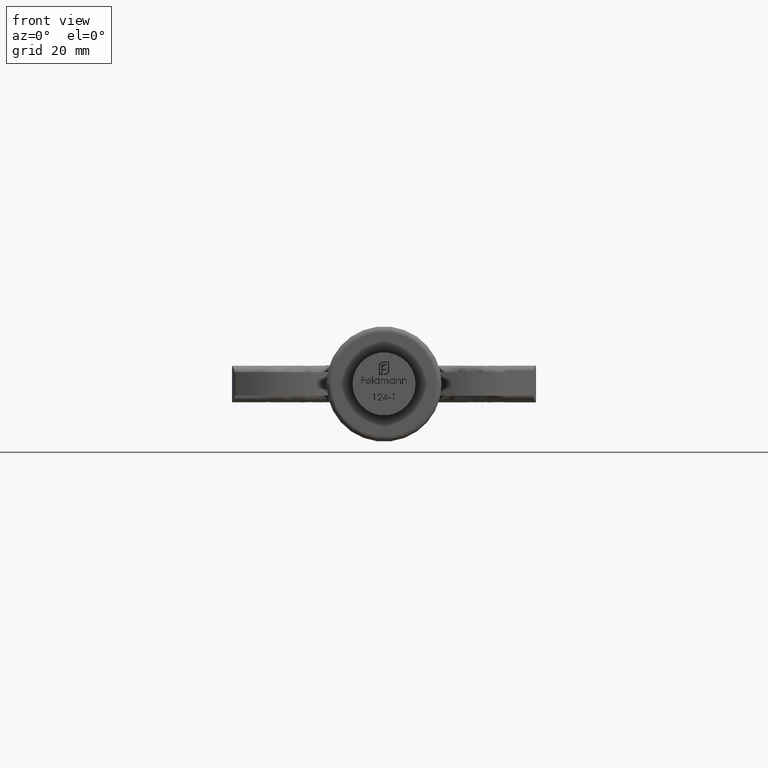
[diagram: clean part render]
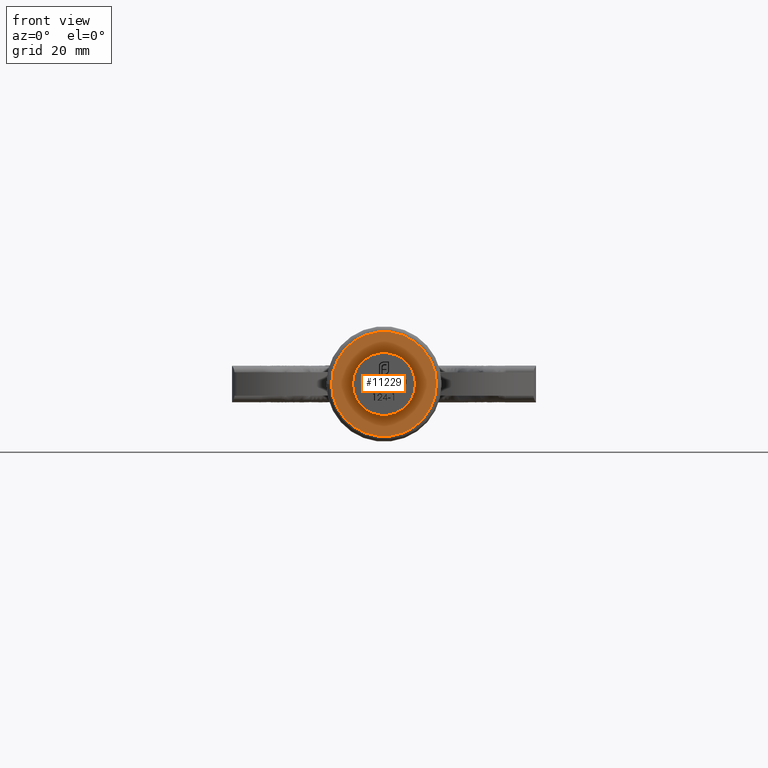
[diagram: same view with one face highlighted and labeled with its STEP entity id]
A machine part, front view. The second image highlights one B-rep face of the part: STEP entity #11229.
In plain terms, the highlighted planar face has unit normal (-0, 1, 0).
Its self-contained STEP definition (entity closure, byte-faithful):
#468 = DIRECTION ( 'NONE',  ( 1.864089233166492342E-18, -1.000000000000000000, 0.000000000000000000 ) ) ;
#2172 = FACE_OUTER_BOUND ( 'NONE', #16883, .T. ) ;
#4121 = DIRECTION ( 'NONE',  ( -1.864089233166492342E-18, 1.000000000000000000, -0.000000000000000000 ) ) ;
#5083 = AXIS2_PLACEMENT_3D ( 'NONE', #8704, #4121, #16316 ) ;
#6366 = CIRCLE ( 'NONE', #9300, 10.00000000000001243 ) ;
#6829 = VERTEX_POINT ( 'NONE', #10654 ) ;
#7592 = ORIENTED_EDGE ( 'NONE', *, *, #18942, .T. ) ;
#8078 = CARTESIAN_POINT ( 'NONE',  ( -2.423316003116439620E-17, 13.00000000000000178, 0.000000000000000000 ) ) ;
#8704 = CARTESIAN_POINT ( 'NONE',  ( -2.423316003116439928E-17, 13.00000000000000178, 0.000000000000000000 ) ) ;
#8880 = ORIENTED_EDGE ( 'NONE', *, *, #15770, .T. ) ;
#9300 = AXIS2_PLACEMENT_3D ( 'NONE', #8078, #468, #16977 ) ;
#9505 = CARTESIAN_POINT ( 'NONE',  ( 11.00000000000001243, 13.00000000000000178, 0.000000000000000000 ) ) ;
#10654 = CARTESIAN_POINT ( 'NONE',  ( -10.00000000000001243, 13.00000000000000178, 0.000000000000000000 ) ) ;
#11229 = ADVANCED_FACE ( 'NONE', ( #2172, #16743 ), #17178, .F. ) ;
#13666 = CARTESIAN_POINT ( 'NONE',  ( -6.000000000000000000, 13.00000000000000178, 0.000000000000000000 ) ) ;
#14990 = CIRCLE ( 'NONE', #5083, 6.000000000000000000 ) ;
#15086 = AXIS2_PLACEMENT_3D ( 'NONE', #9505, #17317, #18787 ) ;
#15184 = VERTEX_POINT ( 'NONE', #13666 ) ;
#15770 = EDGE_CURVE ( 'NONE', #15184, #15184, #14990, .T. ) ;
#16316 = DIRECTION ( 'NONE',  ( -1.000000000000000000, 0.000000000000000000, 0.000000000000000000 ) ) ;
#16743 = FACE_BOUND ( 'NONE', #16910, .T. ) ;
#16883 = EDGE_LOOP ( 'NONE', ( #7592 ) ) ;
#16910 = EDGE_LOOP ( 'NONE', ( #8880 ) ) ;
#16977 = DIRECTION ( 'NONE',  ( -1.000000000000000000, 0.000000000000000000, 0.000000000000000000 ) ) ;
#17178 = PLANE ( 'NONE',  #15086 ) ;
#17317 = DIRECTION ( 'NONE',  ( -1.864089233166492342E-18, 1.000000000000000000, 0.000000000000000000 ) ) ;
#18787 = DIRECTION ( 'NONE',  ( -1.000000000000000000, -1.864089233166492342E-18, 0.000000000000000000 ) ) ;
#18942 = EDGE_CURVE ( 'NONE', #6829, #6829, #6366, .T. ) ;